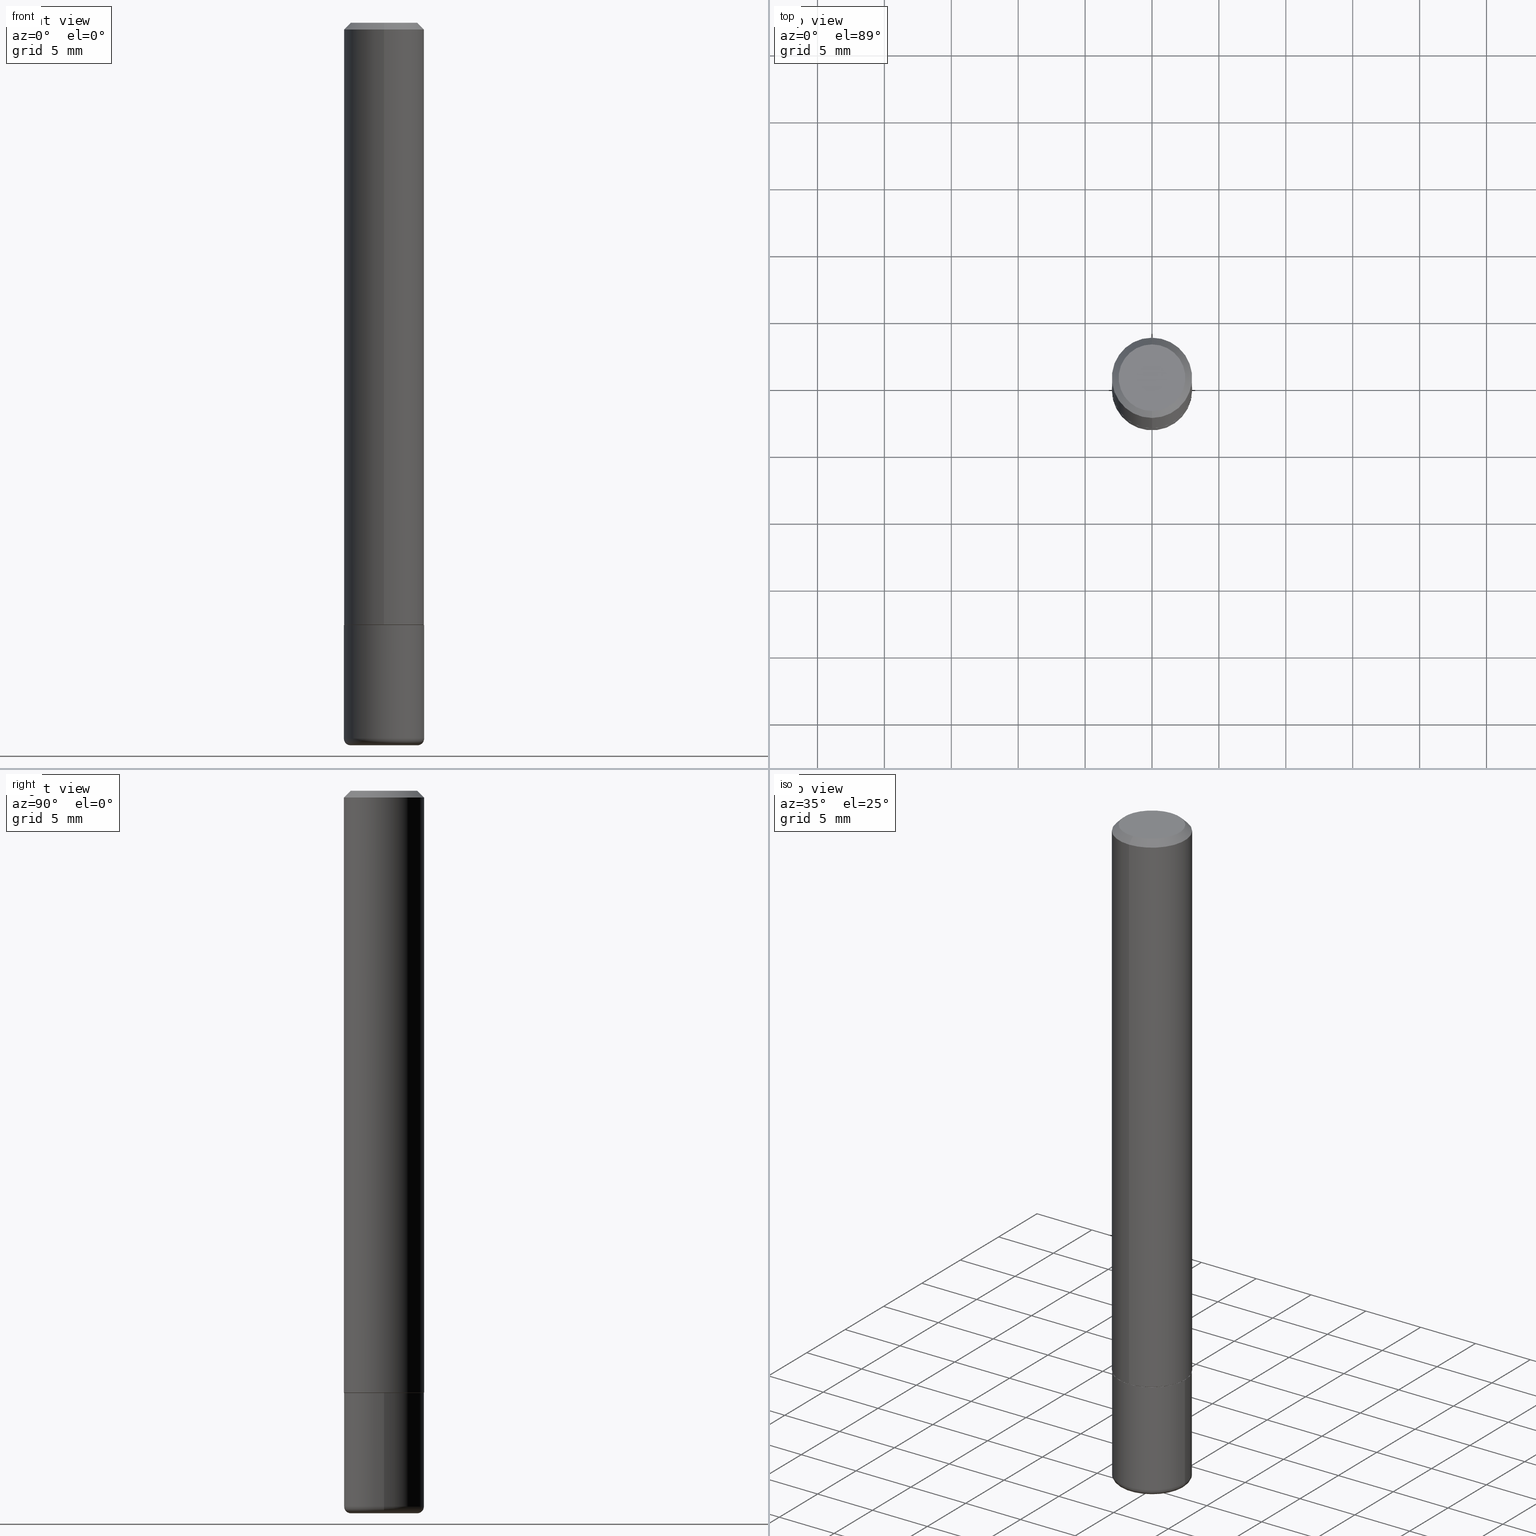
[diagram: canonical four-view strip — front | top / right | iso, engineering-drawing reading convention]
A machine part, canonical four-view strip (front | top / right | iso — engineering-drawing reading convention). The complete STEP part file that produces these views, byte-faithful:
ISO-10303-21;
HEADER;
FILE_DESCRIPTION (( 'STEP AP203' ),
    '1' );
FILE_NAME ('47000.STEP',
    '2024-03-05T09:48:08',
    ( '' ),
    ( '' ),
    'SwSTEP 2.0',
    'SolidWorks 2023',
    '' );
FILE_SCHEMA (( 'CONFIG_CONTROL_DESIGN' ));
ENDSEC;

DATA;
#1 = FACE_OUTER_BOUND ( 'NONE', #224, .T. ) ;
#2 = ADVANCED_FACE ( 'NONE', ( #59 ), #264, .F. ) ;
#3 = ORIENTED_EDGE ( 'NONE', *, *, #137, .T. ) ;
#4 = LINE ( 'NONE', #393, #113 ) ;
#5 = CALENDAR_DATE ( 2024, 5, 3 ) ;
#6 = LINE ( 'NONE', #237, #267 ) ;
#7 = CIRCLE ( 'NONE', #317, 0.01969999999999991203 ) ;
#8 = DIRECTION ( 'NONE',  ( -2.445468806185136877E-29, 3.491481338843145188E-15, 1.000000000000000000 ) ) ;
#9 = DATE_TIME_ROLE ( 'creation_date' ) ;
#10 = FACE_OUTER_BOUND ( 'NONE', #46, .T. ) ;
#11 = APPROVAL_ROLE ( '' ) ;
#12 = CARTESIAN_POINT ( 'NONE',  ( -8.246878922347489529E-16, -0.1181000000000001354, 4.133363577972476627E-16 ) ) ;
#13 = APPROVAL_PERSON_ORGANIZATION ( #40, #260, #11 ) ;
#14 = COORDINATED_UNIVERSAL_TIME_OFFSET ( 5, 0, .BEHIND. ) ;
#15 = ADVANCED_FACE ( 'NONE', ( #1 ), #150, .T. ) ;
#16 = DIRECTION ( 'NONE',  ( -2.439600919884167677E-29, 3.499884486005480105E-15, 1.000000000000000000 ) ) ;
#17 = ORIENTED_EDGE ( 'NONE', *, *, #98, .F. ) ;
#18 = DIRECTION ( 'NONE',  ( -6.982962677686265922E-15, -1.000000000000000000, 3.499884486005480105E-15 ) ) ;
#19 = ADVANCED_FACE ( 'NONE', ( #57 ), #89, .T. ) ;
#20 = EDGE_LOOP ( 'NONE', ( #51, #93, #282, #286 ) ) ;
#21 = CARTESIAN_POINT ( 'NONE',  ( 8.320455435751206749E-16, 0.1170999999999938479, -1.771700000000000497 ) ) ;
#22 = VERTEX_POINT ( 'NONE', #298 ) ;
#23 = AXIS2_PLACEMENT_3D ( 'NONE', #218, #376, #318 ) ;
#24 = DIRECTION ( 'NONE',  ( -6.982962677686265922E-15, -1.000000000000000000, 3.499884486005479316E-15 ) ) ;
#25 = ORIENTED_EDGE ( 'NONE', *, *, #335, .F. ) ;
#26 = AXIS2_PLACEMENT_3D ( 'NONE', #395, #266, #105 ) ;
#27 = ORIENTED_EDGE ( 'NONE', *, *, #197, .T. ) ;
#28 = ORIENTED_EDGE ( 'NONE', *, *, #287, .F. ) ;
#29 = EDGE_CURVE ( 'NONE', #219, #251, #54, .T. ) ;
#30 = ORIENTED_EDGE ( 'NONE', *, *, #162, .T. ) ;
#31 = AXIS2_PLACEMENT_3D ( 'NONE', #301, #389, #359 ) ;
#32 = DIRECTION ( 'NONE',  ( 6.982962677686265922E-15, 1.000000000000000000, -3.505890868245044514E-15 ) ) ;
#33 = DIRECTION ( 'NONE',  ( -2.439600919884167677E-29, 3.499884486005479711E-15, 1.000000000000000000 ) ) ;
#34 = EDGE_CURVE ( 'NONE', #261, #195, #296, .T. ) ;
#35 = COORDINATED_UNIVERSAL_TIME_OFFSET ( 5, 0, .BEHIND. ) ;
#36 = CARTESIAN_POINT ( 'NONE',  ( 4.332637083918205866E-29, -6.185857488028400292E-15, -1.771699999999999831 ) ) ;
#37 =( CONVERSION_BASED_UNIT ( 'INCH', #67 ) LENGTH_UNIT ( ) NAMED_UNIT ( #254 ) );
#38 = CARTESIAN_POINT ( 'NONE',  ( 5.150890946467753013E-29, -7.354107144005317023E-15, -2.106300000000000061 ) ) ;
#39 = AXIS2_PLACEMENT_3D ( 'NONE', #361, #163, #103 ) ;
#40 = PERSON_AND_ORGANIZATION ( #209, #397 ) ;
#41 = CYLINDRICAL_SURFACE ( 'NONE', #133, 0.1181000000000000383 ) ;
#42 = DIRECTION ( 'NONE',  ( 1.000000000000000000, -6.982962677686261977E-15, 0.000000000000000000 ) ) ;
#43 = CARTESIAN_POINT ( 'NONE',  ( 0.000000000000000000, 0.000000000000000000, 0.000000000000000000 ) ) ;
#44 = DIRECTION ( 'NONE',  ( 7.105427357601001859E-15, 1.000000000000000000, -3.491481338843145583E-15 ) ) ;
#45 = AXIS2_PLACEMENT_3D ( 'NONE', #102, #173, #307 ) ;
#46 = EDGE_LOOP ( 'NONE', ( #116, #411, #129, #17 ) ) ;
#47 = AXIS2_PLACEMENT_3D ( 'NONE', #36, #369, #304 ) ;
#48 = CC_DESIGN_PERSON_AND_ORGANIZATION_ASSIGNMENT ( #172, #132, ( #189 ) ) ;
#49 = CARTESIAN_POINT ( 'NONE',  ( 0.09840000000000000135, -8.041230671489646072E-15, -2.106300000000000061 ) ) ;
#50 = CARTESIAN_POINT ( 'NONE',  ( -0.1180999999999999689, -6.514956173072637249E-15, -2.106299999999999617 ) ) ;
#51 = ORIENTED_EDGE ( 'NONE', *, *, #62, .F. ) ;
#52 = CYLINDRICAL_SURFACE ( 'NONE', #374, 0.1181000000000001354 ) ;
#53 = ORIENTED_EDGE ( 'NONE', *, *, #130, .F. ) ;
#54 = CIRCLE ( 'NONE', #373, 0.1181000000000002603 ) ;
#55 = MANIFOLD_SOLID_BREP ( 'Body-Move/Copy2[1]', #308 ) ;
#56 = EDGE_LOOP ( 'NONE', ( #118, #313 ) ) ;
#57 = FACE_OUTER_BOUND ( 'NONE', #95, .T. ) ;
#58 = MANIFOLD_SOLID_BREP ( 'Body-Move/Copy2[2]', #238 ) ;
#59 = FACE_OUTER_BOUND ( 'NONE', #88, .T. ) ;
#60 = AXIS2_PLACEMENT_3D ( 'NONE', #84, #215, #346 ) ;
#61 = CARTESIAN_POINT ( 'NONE',  ( 4.879201839768351154E-31, -6.999768972010982150E-17, -0.02000000000000006287 ) ) ;
#62 = EDGE_CURVE ( 'NONE', #219, #289, #125, .T. ) ;
#63 = ORIENTED_EDGE ( 'NONE', *, *, #124, .T. ) ;
#64 = VERTEX_POINT ( 'NONE', #384 ) ;
#65 = AXIS2_PLACEMENT_3D ( 'NONE', #200, #269, #327 ) ;
#66 = CARTESIAN_POINT ( 'NONE',  ( -7.416198335591013204E-16, -0.09809999999999970133, 6.984495534920956543E-16 ) ) ;
#67 = LENGTH_MEASURE_WITH_UNIT ( LENGTH_MEASURE( 0.02539999999999999897 ), #207 );
#68 = CARTESIAN_POINT ( 'NONE',  ( 8.391509709327015671E-16, 0.1180999999999940708, -1.770700000000000385 ) ) ;
#69 = DATE_AND_TIME ( #234, #250 ) ;
#70 = DIRECTION ( 'NONE',  ( -2.445468806185136597E-29, 3.491481338843145583E-15, 1.000000000000000000 ) ) ;
#71 = APPROVAL_DATE_TIME ( #170, #275 ) ;
#72 = AXIS2_PLACEMENT_3D ( 'NONE', #387, #157, #294 ) ;
#73 = PLANE ( 'NONE',  #31 ) ;
#74 = LOCAL_TIME ( 4, 48, 8.000000000000000000, #35 ) ;
#75 = PRODUCT ( '47000', '47000', '', ( #139 ) ) ;
#76 = PERSON_AND_ORGANIZATION_ROLE ( 'design_supplier' ) ;
#77 = EDGE_CURVE ( 'NONE', #64, #372, #342, .T. ) ;
#78 = LINE ( 'NONE', #134, #127 ) ;
#79 =( NAMED_UNIT ( * ) SI_UNIT ( $, .STERADIAN. ) SOLID_ANGLE_UNIT ( ) );
#80 = CARTESIAN_POINT ( 'NONE',  ( 0.000000000000000000, 0.000000000000000000, 0.000000000000000000 ) ) ;
#81 = CARTESIAN_POINT ( 'NONE',  ( -0.09840000000000000135, -6.619335723732613679E-15, -2.125999999999999890 ) ) ;
#82 = CONICAL_SURFACE ( 'NONE', #96, 0.1171000000000000513, 0.7853981633975165577 ) ;
#83 = ADVANCED_FACE ( 'NONE', ( #229 ), #123, .T. ) ;
#84 = CARTESIAN_POINT ( 'NONE',  ( 4.879201839768351154E-31, -6.999768972010982150E-17, -0.02000000000000006287 ) ) ;
#85 = ORIENTED_EDGE ( 'NONE', *, *, #223, .T. ) ;
#86 = DIRECTION ( 'NONE',  ( -1.000000000000000000, 7.105427357601008170E-15, 0.000000000000000000 ) ) ;
#87 = ORIENTED_EDGE ( 'NONE', *, *, #167, .F. ) ;
#88 = EDGE_LOOP ( 'NONE', ( #216, #91 ) ) ;
#89 = CONICAL_SURFACE ( 'NONE', #413, 0.1181000000000000383, 0.7853981633974461696 ) ;
#90 = CONICAL_SURFACE ( 'NONE', #60, 0.1181000000000000383, 0.7853981633974461696 ) ;
#91 = ORIENTED_EDGE ( 'NONE', *, *, #292, .T. ) ;
#92 = EDGE_CURVE ( 'NONE', #372, #195, #4, .T. ) ;
#93 = ORIENTED_EDGE ( 'NONE', *, *, #29, .T. ) ;
#94 = APPLICATION_CONTEXT ( 'configuration controlled 3d designs of mechanical parts and assemblies' ) ;
#95 = EDGE_LOOP ( 'NONE', ( #228, #146, #326, #403 ) ) ;
#96 = AXIS2_PLACEMENT_3D ( 'NONE', #106, #271, #100 ) ;
#97 = EDGE_LOOP ( 'NONE', ( #382, #63 ) ) ;
#98 = EDGE_CURVE ( 'NONE', #324, #251, #78, .T. ) ;
#99 = CARTESIAN_POINT ( 'NONE',  ( 5.150890946467751892E-29, -7.354107144005315446E-15, -2.106299999999999617 ) ) ;
#100 = DIRECTION ( 'NONE',  ( -6.982962677686266711E-15, -1.000000000000000000, 4.665837734695579875E-15 ) ) ;
#101 = CC_DESIGN_APPROVAL ( #260, ( #331 ) ) ;
#102 = CARTESIAN_POINT ( 'NONE',  ( 4.879201839768351154E-31, -6.999768972010982150E-17, -0.02000000000000006287 ) ) ;
#103 = DIRECTION ( 'NONE',  ( -6.982962677686265922E-15, -1.000000000000000000, 3.505890868245044514E-15 ) ) ;
#104 = PERSON_AND_ORGANIZATION_ROLE ( 'design_owner' ) ;
#105 = DIRECTION ( 'NONE',  ( 1.000000000000000000, -6.982962677686261977E-15, 0.000000000000000000 ) ) ;
#106 = CARTESIAN_POINT ( 'NONE',  ( 4.322240949758779286E-29, -6.200745343855908404E-15, -1.771699999999999831 ) ) ;
#107 = APPROVAL ( #334, 'UNSPECIFIED' ) ;
#108 = DIRECTION ( 'NONE',  ( -2.439600919884167677E-29, 3.499884486005480105E-15, 1.000000000000000000 ) ) ;
#109 = CARTESIAN_POINT ( 'NONE',  ( 4.322240949758779286E-29, -6.200745343855908404E-15, -1.771699999999999831 ) ) ;
#110 = ADVANCED_FACE ( 'NONE', ( #241 ), #366, .T. ) ;
#111 = ORIENTED_EDGE ( 'NONE', *, *, #408, .F. ) ;
#112 = FACE_OUTER_BOUND ( 'NONE', #347, .T. ) ;
#113 = VECTOR ( 'NONE', #8, 39.37007874015748143 ) ;
#114 = AXIS2_PLACEMENT_3D ( 'NONE', #109, #16, #283 ) ;
#115 = DIRECTION ( 'NONE',  ( -2.439600919884167677E-29, 3.499884486005480105E-15, 1.000000000000000000 ) ) ;
#116 = ORIENTED_EDGE ( 'NONE', *, *, #144, .T. ) ;
#117 = EDGE_CURVE ( 'NONE', #251, #180, #332, .T. ) ;
#118 = ORIENTED_EDGE ( 'NONE', *, *, #144, .F. ) ;
#119 = AXIS2_PLACEMENT_3D ( 'NONE', #353, #128, #191 ) ;
#120 = CONICAL_SURFACE ( 'NONE', #114, 0.1171000000000000513, 0.7853981633975165577 ) ;
#121 = LOCAL_TIME ( 4, 48, 8.000000000000000000, #14 ) ;
#122 = CC_DESIGN_PERSON_AND_ORGANIZATION_ASSIGNMENT ( #143, #76, ( #375 ) ) ;
#123 = PLANE ( 'NONE',  #316 ) ;
#124 = EDGE_CURVE ( 'NONE', #195, #261, #213, .T. ) ;
#125 = LINE ( 'NONE', #259, #412 ) ;
#126 = DIRECTION ( 'NONE',  ( -1.000000000000000000, 6.982962677686265922E-15, -4.876176775795935793E-29 ) ) ;
#127 = VECTOR ( 'NONE', #202, 39.37007874015748143 ) ;
#128 = DIRECTION ( 'NONE',  ( -2.445468806185136597E-29, 3.491481338843145583E-15, 1.000000000000000000 ) ) ;
#129 = ORIENTED_EDGE ( 'NONE', *, *, #162, .F. ) ;
#130 = EDGE_CURVE ( 'NONE', #159, #180, #136, .T. ) ;
#131 = DIRECTION ( 'NONE',  ( -6.982962677686265922E-15, -1.000000000000000000, 3.499884486005479316E-15 ) ) ;
#132 = PERSON_AND_ORGANIZATION_ROLE ( 'classification_officer' ) ;
#133 = AXIS2_PLACEMENT_3D ( 'NONE', #80, #211, #249 ) ;
#134 = CARTESIAN_POINT ( 'NONE',  ( -8.177049295570189596E-16, -0.1171000000000062408, -1.771699999999999386 ) ) ;
#135 = DATE_AND_TIME ( #303, #142 ) ;
#136 = LINE ( 'NONE', #396, #205 ) ;
#137 = EDGE_CURVE ( 'NONE', #22, #341, #262, .T. ) ;
#138 = EDGE_CURVE ( 'NONE', #289, #180, #187, .T. ) ;
#139 = MECHANICAL_CONTEXT ( 'NONE', #94, 'mechanical' ) ;
#140 = CARTESIAN_POINT ( 'NONE',  ( 7.548582654578846686E-16, 0.09809999999999970133, 1.177221733782262973E-17 ) ) ;
#141 = CARTESIAN_POINT ( 'NONE',  ( 4.322240949758779286E-29, -6.200745343855908404E-15, -1.771699999999999831 ) ) ;
#142 = LOCAL_TIME ( 4, 48, 8.000000000000000000, #330 ) ;
#143 = PERSON_AND_ORGANIZATION ( #209, #397 ) ;
#144 = EDGE_CURVE ( 'NONE', #324, #212, #192, .T. ) ;
#145 = FACE_OUTER_BOUND ( 'NONE', #20, .T. ) ;
#146 = ORIENTED_EDGE ( 'NONE', *, *, #130, .T. ) ;
#147 = FACE_OUTER_BOUND ( 'NONE', #97, .T. ) ;
#148 = COORDINATED_UNIVERSAL_TIME_OFFSET ( 5, 0, .BEHIND. ) ;
#149 = CARTESIAN_POINT ( 'NONE',  ( 0.1181000000000000383, -7.010545380263147766E-15, -1.771699999999999831 ) ) ;
#150 = TOROIDAL_SURFACE ( 'NONE', #119, 0.09840000000000000135, 0.01969999999999991203 ) ;
#151 = CIRCLE ( 'NONE', #357, 0.09809999999999970133 ) ;
#152 = EDGE_LOOP ( 'NONE', ( #410, #377 ) ) ;
#153 = CARTESIAN_POINT ( 'NONE',  ( -8.246878922347066502E-16, -0.1181000000000064498, -1.770699999999999275 ) ) ;
#154 = EDGE_CURVE ( 'NONE', #178, #159, #166, .T. ) ;
#155 = ORIENTED_EDGE ( 'NONE', *, *, #287, .T. ) ;
#156 = ADVANCED_FACE ( 'NONE', ( #10 ), #82, .T. ) ;
#157 = DIRECTION ( 'NONE',  ( -2.445468806185136597E-29, 3.491481338843145583E-15, 1.000000000000000000 ) ) ;
#158 = DIRECTION ( 'NONE',  ( 2.439600919884167958E-29, -3.499884486005479711E-15, -1.000000000000000000 ) ) ;
#159 = VERTEX_POINT ( 'NONE', #66 ) ;
#160 = AXIS2_PLACEMENT_3D ( 'NONE', #243, #400, #370 ) ;
#161 = DIRECTION ( 'NONE',  ( 2.439600919884167677E-29, -3.499884486005480105E-15, -1.000000000000000000 ) ) ;
#162 = EDGE_CURVE ( 'NONE', #251, #219, #381, .T. ) ;
#163 = DIRECTION ( 'NONE',  ( -2.439600919884167677E-29, 3.499884486005480105E-15, 1.000000000000000000 ) ) ;
#164 = PRODUCT_RELATED_PRODUCT_CATEGORY ( 'detail', '', ( #75 ) ) ;
#165 = CARTESIAN_POINT ( 'NONE',  ( -0.1181000000000000383, -5.930831345084179278E-15, -1.771699999999999831 ) ) ;
#166 = CIRCLE ( 'NONE', #220, 0.09809999999999970133 ) ;
#167 = EDGE_CURVE ( 'NONE', #180, #289, #343, .T. ) ;
#168 = DIRECTION ( 'NONE',  ( 1.000000000000000000, -6.982962677686269866E-15, 4.883557194083114022E-29 ) ) ;
#169 = DESIGN_CONTEXT ( 'detailed design', #181, 'design' ) ;
#170 = DATE_AND_TIME ( #5, #121 ) ;
#171 = DIRECTION ( 'NONE',  ( -4.851104656540953231E-15, -0.7071067811865484609, -0.7071067811865465735 ) ) ;
#172 = PERSON_AND_ORGANIZATION ( #209, #397 ) ;
#173 = DIRECTION ( 'NONE',  ( -2.439600919884167677E-29, 3.499884486005480105E-15, 1.000000000000000000 ) ) ;
#174 = APPROVAL_STATUS ( 'not_yet_approved' ) ;
#175 = CARTESIAN_POINT ( 'NONE',  ( 0.000000000000000000, 0.000000000000000000, 0.000000000000000000 ) ) ;
#176 = AXIS2_PLACEMENT_3D ( 'NONE', #175, #312, #18 ) ;
#177 = LOCAL_TIME ( 4, 48, 8.000000000000000000, #148 ) ;
#178 = VERTEX_POINT ( 'NONE', #140 ) ;
#179 = FACE_OUTER_BOUND ( 'NONE', #354, .T. ) ;
#180 = VERTEX_POINT ( 'NONE', #299 ) ;
#181 = APPLICATION_CONTEXT ( 'configuration controlled 3d designs of mechanical parts and assemblies' ) ;
#182 = LINE ( 'NONE', #21, #240 ) ;
#183 = CC_DESIGN_PERSON_AND_ORGANIZATION_ASSIGNMENT ( #337, #305, ( #331 ) ) ;
#184 = ORIENTED_EDGE ( 'NONE', *, *, #117, .F. ) ;
#185 = DIRECTION ( 'NONE',  ( -6.982962677686265922E-15, -1.000000000000000000, 3.499884486005480105E-15 ) ) ;
#186 = VECTOR ( 'NONE', #33, 39.37007874015748143 ) ;
#187 = CIRCLE ( 'NONE', #45, 0.1181000000000000383 ) ;
#188 = EDGE_LOOP ( 'NONE', ( #111, #417, #386, #379 ) ) ;
#189 = SECURITY_CLASSIFICATION ( '', '', #231 ) ;
#190 = DIRECTION ( 'NONE',  ( -2.439600919884167677E-29, 3.499884486005479711E-15, 1.000000000000000000 ) ) ;
#191 = DIRECTION ( 'NONE',  ( 1.000000000000000000, -6.982962677686269866E-15, 4.883557194083114022E-29 ) ) ;
#192 = CIRCLE ( 'NONE', #288, 0.1171000000000000513 ) ;
#193 = PRODUCT_DEFINITION_SHAPE ( 'NONE', 'NONE',  #331 ) ;
#194 = CC_DESIGN_SECURITY_CLASSIFICATION ( #189, ( #375 ) ) ;
#195 = VERTEX_POINT ( 'NONE', #165 ) ;
#196 = ORIENTED_EDGE ( 'NONE', *, *, #62, .T. ) ;
#197 = EDGE_CURVE ( 'NONE', #341, #22, #390, .T. ) ;
#198 = EDGE_LOOP ( 'NONE', ( #383, #315, #225, #25 ) ) ;
#199 = AXIS2_PLACEMENT_3D ( 'NONE', #38, #230, #168 ) ;
#200 = CARTESIAN_POINT ( 'NONE',  ( 4.319801348838895130E-29, -6.197245459369903172E-15, -1.770699999999999719 ) ) ;
#201 = CC_DESIGN_PERSON_AND_ORGANIZATION_ASSIGNMENT ( #272, #339, ( #375 ) ) ;
#202 = DIRECTION ( 'NONE',  ( -4.937700262164884886E-15, -0.7071067811865933139, 0.7071067811865017205 ) ) ;
#203 = DIRECTION ( 'NONE',  ( -2.439600919884167677E-29, 3.499884486005480105E-15, 1.000000000000000000 ) ) ;
#204 = APPROVAL_ROLE ( '' ) ;
#205 = VECTOR ( 'NONE', #171, 39.37007874015748143 ) ;
#206 = FACE_OUTER_BOUND ( 'NONE', #198, .T. ) ;
#207 =( LENGTH_UNIT ( ) NAMED_UNIT ( * ) SI_UNIT ( $, .METRE. ) );
#208 = CARTESIAN_POINT ( 'NONE',  ( 5.199066681949599750E-29, -7.422889326380526631E-15, -2.125999999999999890 ) ) ;
#209 = PERSON ( 'UNSPECIFIED', 'UNSPECIFIED', 'UNSPECIFIED', ('UNSPECIFIED'), ('UNSPECIFIED'), ('UNSPECIFIED') ) ;
#210 = APPROVAL_DATE_TIME ( #392, #260 ) ;
#211 = DIRECTION ( 'NONE',  ( -2.445468806185136597E-29, 3.491481338843145583E-15, 1.000000000000000000 ) ) ;
#212 = VERTEX_POINT ( 'NONE', #232 ) ;
#213 = CIRCLE ( 'NONE', #47, 0.1181000000000000383 ) ;
#214 = CARTESIAN_POINT ( 'NONE',  ( 4.322240949758779286E-29, -6.200745343855908404E-15, -1.771699999999999831 ) ) ;
#215 = DIRECTION ( 'NONE',  ( 2.439600919884167677E-29, -3.499884486005480105E-15, -1.000000000000000000 ) ) ;
#216 = ORIENTED_EDGE ( 'NONE', *, *, #154, .T. ) ;
#217 = ADVANCED_FACE ( 'NONE', ( #273 ), #73, .F. ) ;
#218 = CARTESIAN_POINT ( 'NONE',  ( 4.332637083918205866E-29, -6.185857488028400292E-15, -1.771699999999999831 ) ) ;
#219 = VERTEX_POINT ( 'NONE', #68 ) ;
#220 = AXIS2_PLACEMENT_3D ( 'NONE', #306, #203, #131 ) ;
#221 = ORIENTED_EDGE ( 'NONE', *, *, #293, .T. ) ;
#222 = APPROVAL_ROLE ( '' ) ;
#223 = EDGE_CURVE ( 'NONE', #178, #289, #6, .T. ) ;
#224 = EDGE_LOOP ( 'NONE', ( #3, #155, #356, #295 ) ) ;
#225 = ORIENTED_EDGE ( 'NONE', *, *, #34, .F. ) ;
#226 = DIRECTION ( 'NONE',  ( -2.445468806185136597E-29, 3.491481338843145583E-15, 1.000000000000000000 ) ) ;
#227 =( GEOMETRIC_REPRESENTATION_CONTEXT ( 3 ) GLOBAL_UNCERTAINTY_ASSIGNED_CONTEXT ( ( #246 ) ) GLOBAL_UNIT_ASSIGNED_CONTEXT ( ( #37, #398, #79 ) ) REPRESENTATION_CONTEXT ( 'NONE', 'WORKASPACE' ) );
#228 = ORIENTED_EDGE ( 'NONE', *, *, #292, .F. ) ;
#229 = FACE_OUTER_BOUND ( 'NONE', #152, .T. ) ;
#230 = DIRECTION ( 'NONE',  ( -2.445468806185136597E-29, 3.491481338843145583E-15, 1.000000000000000000 ) ) ;
#231 = SECURITY_CLASSIFICATION_LEVEL ( 'unclassified' ) ;
#232 = CARTESIAN_POINT ( 'NONE',  ( 8.355982572539219678E-16, 0.1170999999999938479, -1.771700000000000497 ) ) ;
#233 = EDGE_CURVE ( 'NONE', #372, #64, #321, .T. ) ;
#234 = CALENDAR_DATE ( 2024, 5, 3 ) ;
#235 = DIRECTION ( 'NONE',  ( 4.937700262164536998E-15, 0.7071067811865435759, -0.7071067811865514585 ) ) ;
#236 = DIRECTION ( 'NONE',  ( 1.000000000000000000, 0.000000000000000000, 0.000000000000000000 ) ) ;
#237 = CARTESIAN_POINT ( 'NONE',  ( 8.246878922347486570E-16, 0.1180999999999999689, -0.02000000000000047920 ) ) ;
#238 = CLOSED_SHELL ( 'NONE', ( #156, #362, #19, #364, #281, #252, #217, #2 ) ) ;
#239 = COORDINATED_UNIVERSAL_TIME_OFFSET ( 5, 0, .BEHIND. ) ;
#240 = VECTOR ( 'NONE', #278, 39.37007874015748143 ) ;
#241 = FACE_OUTER_BOUND ( 'NONE', #291, .T. ) ;
#242 = CALENDAR_DATE ( 2024, 5, 3 ) ;
#243 = CARTESIAN_POINT ( 'NONE',  ( 0.000000000000000000, 0.000000000000000000, 0.000000000000000000 ) ) ;
#244 = ADVANCED_FACE ( 'NONE', ( #206 ), #41, .T. ) ;
#245 = CARTESIAN_POINT ( 'NONE',  ( -8.663288427192156603E-45, 1.242847078675485484E-30, 3.551108854149591813E-16 ) ) ;
#246 = UNCERTAINTY_MEASURE_WITH_UNIT (LENGTH_MEASURE( 1.000000000000000082E-05 ), #37, 'distance_accuracy_value', 'NONE');
#247 = ORIENTED_EDGE ( 'NONE', *, *, #233, .T. ) ;
#248 = VECTOR ( 'NONE', #344, 39.37007874015748143 ) ;
#249 = DIRECTION ( 'NONE',  ( 1.000000000000000000, -6.982962677686266711E-15, 4.876176775795935793E-29 ) ) ;
#250 = LOCAL_TIME ( 4, 48, 8.000000000000000000, #239 ) ;
#251 = VERTEX_POINT ( 'NONE', #153 ) ;
#252 = ADVANCED_FACE ( 'NONE', ( #311 ), #120, .T. ) ;
#253 = CALENDAR_DATE ( 2024, 5, 3 ) ;
#254 = DIMENSIONAL_EXPONENTS ( 1.000000000000000000, 0.000000000000000000, 0.000000000000000000, 0.000000000000000000, 0.000000000000000000, 0.000000000000000000, 0.000000000000000000 ) ;
#255 = DIRECTION ( 'NONE',  ( -6.982962677686266711E-15, -1.000000000000000000, 3.491481338843145583E-15 ) ) ;
#256 = ORIENTED_EDGE ( 'NONE', *, *, #138, .T. ) ;
#257 = AXIS2_PLACEMENT_3D ( 'NONE', #208, #338, #42 ) ;
#258 = CARTESIAN_POINT ( 'NONE',  ( 9.320653127775695451E-29, -1.520542949825435449E-15, -2.125999999999999890 ) ) ;
#259 = CARTESIAN_POINT ( 'NONE',  ( 8.391509709326791832E-16, 0.1181000000000001354, -4.133363577972476627E-16 ) ) ;
#260 = APPROVAL ( #309, 'UNSPECIFIED' ) ;
#261 = VERTEX_POINT ( 'NONE', #149 ) ;
#262 = CIRCLE ( 'NONE', #257, 0.09840000000000000135 ) ;
#263 = CARTESIAN_POINT ( 'NONE',  ( 4.319801348838895130E-29, -6.197245459369903172E-15, -1.770699999999999719 ) ) ;
#264 = PLANE ( 'NONE',  #385 ) ;
#265 = EDGE_CURVE ( 'NONE', #212, #324, #367, .T. ) ;
#266 = DIRECTION ( 'NONE',  ( -2.445468806185136597E-29, 3.491481338843145583E-15, 1.000000000000000000 ) ) ;
#267 = VECTOR ( 'NONE', #235, 39.37007874015748143 ) ;
#268 = PERSON_AND_ORGANIZATION ( #209, #397 ) ;
#269 = DIRECTION ( 'NONE',  ( -2.439600919884167677E-29, 3.499884486005480105E-15, 1.000000000000000000 ) ) ;
#270 = DATE_TIME_ROLE ( 'classification_date' ) ;
#271 = DIRECTION ( 'NONE',  ( -2.439600919884167677E-29, 3.499884486005480105E-15, 1.000000000000000000 ) ) ;
#272 = PERSON_AND_ORGANIZATION ( #209, #397 ) ;
#273 = FACE_OUTER_BOUND ( 'NONE', #56, .T. ) ;
#274 = ADVANCED_FACE ( 'NONE', ( #147 ), #371, .F. ) ;
#275 = APPROVAL ( #174, 'UNSPECIFIED' ) ;
#276 = AXIS2_PLACEMENT_3D ( 'NONE', #336, #70, #365 ) ;
#277 = LINE ( 'NONE', #279, #248 ) ;
#278 = DIRECTION ( 'NONE',  ( 5.024295867788404755E-15, 0.7071067811865981989, 0.7071067811864968355 ) ) ;
#279 = CARTESIAN_POINT ( 'NONE',  ( 0.1181000000000000383, -8.246878922347483612E-16, 5.758764772215001842E-30 ) ) ;
#280 = CARTESIAN_POINT ( 'NONE',  ( 8.246878922347486570E-16, 0.1180999999999999689, -0.02000000000000047920 ) ) ;
#281 = ADVANCED_FACE ( 'NONE', ( #145 ), #52, .T. ) ;
#282 = ORIENTED_EDGE ( 'NONE', *, *, #117, .T. ) ;
#283 = DIRECTION ( 'NONE',  ( -6.982962677686266711E-15, -1.000000000000000000, 4.665837734695579875E-15 ) ) ;
#284 = DIRECTION ( 'NONE',  ( -2.439600919884167677E-29, 3.499884486005480105E-15, 1.000000000000000000 ) ) ;
#285 = SHAPE_DEFINITION_REPRESENTATION ( #193, #418 ) ;
#286 = ORIENTED_EDGE ( 'NONE', *, *, #138, .F. ) ;
#287 = EDGE_CURVE ( 'NONE', #341, #372, #333, .T. ) ;
#288 = AXIS2_PLACEMENT_3D ( 'NONE', #141, #388, #329 ) ;
#289 = VERTEX_POINT ( 'NONE', #280 ) ;
#290 = CC_DESIGN_APPROVAL ( #275, ( #375 ) ) ;
#291 = EDGE_LOOP ( 'NONE', ( #28, #27, #221, #350 ) ) ;
#292 = EDGE_CURVE ( 'NONE', #159, #178, #151, .T. ) ;
#293 = EDGE_CURVE ( 'NONE', #22, #64, #7, .T. ) ;
#294 = DIRECTION ( 'NONE',  ( 1.000000000000000000, -6.982962677686262766E-15, 0.000000000000000000 ) ) ;
#295 = ORIENTED_EDGE ( 'NONE', *, *, #293, .F. ) ;
#296 = CIRCLE ( 'NONE', #72, 0.1181000000000000383 ) ;
#297 = AXIS2_PLACEMENT_3D ( 'NONE', #406, #44, #86 ) ;
#298 = CARTESIAN_POINT ( 'NONE',  ( 0.09840000000000000135, -8.110012853864854101E-15, -2.125999999999999890 ) ) ;
#299 = CARTESIAN_POINT ( 'NONE',  ( -8.102248135368175393E-16, -0.1181000000000001077, -0.01999999999999965000 ) ) ;
#300 = APPLICATION_PROTOCOL_DEFINITION ( 'international standard', 'config_control_design', 1994, #181 ) ;
#301 = CARTESIAN_POINT ( 'NONE',  ( 4.322240949758779286E-29, -6.200745343855908404E-15, -1.771699999999999831 ) ) ;
#302 = AXIS2_PLACEMENT_3D ( 'NONE', #43, #328, #236 ) ;
#303 = CALENDAR_DATE ( 2024, 5, 3 ) ;
#304 = DIRECTION ( 'NONE',  ( 1.000000000000000000, -6.982962677686262766E-15, 0.000000000000000000 ) ) ;
#305 = PERSON_AND_ORGANIZATION_ROLE ( 'creator' ) ;
#306 = CARTESIAN_POINT ( 'NONE',  ( -8.663288427192156603E-45, 1.242847078675485484E-30, 3.551108854149591813E-16 ) ) ;
#307 = DIRECTION ( 'NONE',  ( -6.982962677686265922E-15, -1.000000000000000000, 3.505890868245044514E-15 ) ) ;
#308 = CLOSED_SHELL ( 'NONE', ( #244, #15, #274, #360, #110, #83 ) ) ;
#309 = APPROVAL_STATUS ( 'not_yet_approved' ) ;
#310 = APPROVAL_PERSON_ORGANIZATION ( #368, #275, #204 ) ;
#311 = FACE_OUTER_BOUND ( 'NONE', #188, .T. ) ;
#312 = DIRECTION ( 'NONE',  ( -2.439600919884167677E-29, 3.499884486005480105E-15, 1.000000000000000000 ) ) ;
#313 = ORIENTED_EDGE ( 'NONE', *, *, #265, .F. ) ;
#314 = FACE_OUTER_BOUND ( 'NONE', #319, .T. ) ;
#315 = ORIENTED_EDGE ( 'NONE', *, *, #92, .T. ) ;
#316 = AXIS2_PLACEMENT_3D ( 'NONE', #258, #323, #126 ) ;
#317 = AXIS2_PLACEMENT_3D ( 'NONE', #49, #255, #409 ) ;
#318 = DIRECTION ( 'NONE',  ( -1.000000000000000000, 6.982962677686265922E-15, -4.876176775795935793E-29 ) ) ;
#319 = EDGE_LOOP ( 'NONE', ( #345, #247, #351, #401 ) ) ;
#320 = DIRECTION ( 'NONE',  ( 1.000000000000000000, -6.982962677686270655E-15, 0.000000000000000000 ) ) ;
#321 = CIRCLE ( 'NONE', #276, 0.1181000000000000383 ) ;
#322 = DIRECTION ( 'NONE',  ( 6.982962677686265922E-15, 1.000000000000000000, -3.499884486005479711E-15 ) ) ;
#323 = DIRECTION ( 'NONE',  ( 2.438088387897960049E-29, -3.491481338843145188E-15, -1.000000000000000000 ) ) ;
#324 = VERTEX_POINT ( 'NONE', #349 ) ;
#325 = CC_DESIGN_DATE_AND_TIME_ASSIGNMENT ( #69, #9, ( #331 ) ) ;
#326 = ORIENTED_EDGE ( 'NONE', *, *, #167, .T. ) ;
#327 = DIRECTION ( 'NONE',  ( -6.982962677686265133E-15, -1.000000000000000000, 4.626330217890359081E-15 ) ) ;
#328 = DIRECTION ( 'NONE',  ( 0.000000000000000000, 0.000000000000000000, 1.000000000000000000 ) ) ;
#329 = DIRECTION ( 'NONE',  ( -6.982962677686266711E-15, -1.000000000000000000, 4.665837734695579875E-15 ) ) ;
#330 = COORDINATED_UNIVERSAL_TIME_OFFSET ( 5, 0, .BEHIND. ) ;
#331 = PRODUCT_DEFINITION ( 'UNKNOWN', '', #375, #169 ) ;
#332 = LINE ( 'NONE', #12, #186 ) ;
#333 = CIRCLE ( 'NONE', #297, 0.01969999999999991203 ) ;
#334 = APPROVAL_STATUS ( 'not_yet_approved' ) ;
#335 = EDGE_CURVE ( 'NONE', #64, #261, #277, .T. ) ;
#336 = CARTESIAN_POINT ( 'NONE',  ( 5.150890946467751892E-29, -7.354107144005315446E-15, -2.106299999999999617 ) ) ;
#337 = PERSON_AND_ORGANIZATION ( #209, #397 ) ;
#338 = DIRECTION ( 'NONE',  ( -2.445468806185136597E-29, 3.491481338843145583E-15, 1.000000000000000000 ) ) ;
#339 = PERSON_AND_ORGANIZATION_ROLE ( 'creator' ) ;
#340 = CYLINDRICAL_SURFACE ( 'NONE', #176, 0.1181000000000001354 ) ;
#341 = VERTEX_POINT ( 'NONE', #81 ) ;
#342 = CIRCLE ( 'NONE', #380, 0.1181000000000000383 ) ;
#343 = CIRCLE ( 'NONE', #39, 0.1181000000000000383 ) ;
#344 = DIRECTION ( 'NONE',  ( -2.445468806185136877E-29, 3.491481338843145188E-15, 1.000000000000000000 ) ) ;
#345 = ORIENTED_EDGE ( 'NONE', *, *, #92, .F. ) ;
#346 = DIRECTION ( 'NONE',  ( 6.982962677686265922E-15, 1.000000000000000000, -3.505890868245044514E-15 ) ) ;
#347 = EDGE_LOOP ( 'NONE', ( #53, #407, #85, #256 ) ) ;
#348 = APPROVAL_DATE_TIME ( #352, #107 ) ;
#349 = CARTESIAN_POINT ( 'NONE',  ( -8.177049295570189596E-16, -0.1171000000000062408, -1.771699999999999386 ) ) ;
#350 = ORIENTED_EDGE ( 'NONE', *, *, #233, .F. ) ;
#351 = ORIENTED_EDGE ( 'NONE', *, *, #335, .T. ) ;
#352 = DATE_AND_TIME ( #253, #177 ) ;
#353 = CARTESIAN_POINT ( 'NONE',  ( 5.150890946467753013E-29, -7.354107144005317023E-15, -2.106300000000000061 ) ) ;
#354 = EDGE_LOOP ( 'NONE', ( #30, #196, #87, #184 ) ) ;
#355 = CARTESIAN_POINT ( 'NONE',  ( 6.850286386810205815E-16, 0.09809999999999970133, -1.657832253696569563E-16 ) ) ;
#356 = ORIENTED_EDGE ( 'NONE', *, *, #77, .F. ) ;
#357 = AXIS2_PLACEMENT_3D ( 'NONE', #245, #115, #24 ) ;
#358 = APPROVAL_PERSON_ORGANIZATION ( #394, #107, #222 ) ;
#359 = DIRECTION ( 'NONE',  ( -6.982962677686265922E-15, -1.000000000000000000, 3.499884486005479711E-15 ) ) ;
#360 = ADVANCED_FACE ( 'NONE', ( #314 ), #399, .T. ) ;
#361 = CARTESIAN_POINT ( 'NONE',  ( 4.879201839768351154E-31, -6.999768972010982150E-17, -0.02000000000000006287 ) ) ;
#362 = ADVANCED_FACE ( 'NONE', ( #179 ), #340, .T. ) ;
#363 = APPLICATION_PROTOCOL_DEFINITION ( 'international standard', 'config_control_design', 1994, #94 ) ;
#364 = ADVANCED_FACE ( 'NONE', ( #112 ), #90, .T. ) ;
#365 = DIRECTION ( 'NONE',  ( 1.000000000000000000, -6.982962677686270655E-15, 0.000000000000000000 ) ) ;
#366 = TOROIDAL_SURFACE ( 'NONE', #199, 0.09840000000000000135, 0.01969999999999991203 ) ;
#367 = CIRCLE ( 'NONE', #405, 0.1171000000000000513 ) ;
#368 = PERSON_AND_ORGANIZATION ( #209, #397 ) ;
#369 = DIRECTION ( 'NONE',  ( -2.445468806185136597E-29, 3.491481338843145583E-15, 1.000000000000000000 ) ) ;
#370 = DIRECTION ( 'NONE',  ( 1.000000000000000000, -6.982962677686266711E-15, 4.876176775795935793E-29 ) ) ;
#371 = PLANE ( 'NONE',  #23 ) ;
#372 = VERTEX_POINT ( 'NONE', #50 ) ;
#373 = AXIS2_PLACEMENT_3D ( 'NONE', #263, #415, #416 ) ;
#374 = AXIS2_PLACEMENT_3D ( 'NONE', #402, #284, #185 ) ;
#375 = PRODUCT_DEFINITION_FORMATION_WITH_SPECIFIED_SOURCE ( 'ANY', '', #75, .NOT_KNOWN. ) ;
#376 = DIRECTION ( 'NONE',  ( 2.438088387897960049E-29, -3.491481338843145188E-15, -1.000000000000000000 ) ) ;
#377 = ORIENTED_EDGE ( 'NONE', *, *, #197, .F. ) ;
#378 = DIRECTION ( 'NONE',  ( -6.982962677686266711E-15, -1.000000000000000000, 4.665837734695579875E-15 ) ) ;
#379 = ORIENTED_EDGE ( 'NONE', *, *, #29, .F. ) ;
#380 = AXIS2_PLACEMENT_3D ( 'NONE', #99, #226, #320 ) ;
#381 = CIRCLE ( 'NONE', #65, 0.1181000000000002603 ) ;
#382 = ORIENTED_EDGE ( 'NONE', *, *, #34, .T. ) ;
#383 = ORIENTED_EDGE ( 'NONE', *, *, #77, .T. ) ;
#384 = CARTESIAN_POINT ( 'NONE',  ( 0.1180999999999999689, -8.178795036240065286E-15, -2.106299999999999617 ) ) ;
#385 = AXIS2_PLACEMENT_3D ( 'NONE', #355, #158, #322 ) ;
#386 = ORIENTED_EDGE ( 'NONE', *, *, #98, .T. ) ;
#387 = CARTESIAN_POINT ( 'NONE',  ( 4.332637083918205866E-29, -6.185857488028400292E-15, -1.771699999999999831 ) ) ;
#388 = DIRECTION ( 'NONE',  ( -2.439600919884167677E-29, 3.499884486005480105E-15, 1.000000000000000000 ) ) ;
#389 = DIRECTION ( 'NONE',  ( -2.439600919884167958E-29, 3.499884486005479711E-15, 1.000000000000000000 ) ) ;
#390 = CIRCLE ( 'NONE', #26, 0.09840000000000000135 ) ;
#391 = CC_DESIGN_DATE_AND_TIME_ASSIGNMENT ( #135, #270, ( #189 ) ) ;
#392 = DATE_AND_TIME ( #242, #74 ) ;
#393 = CARTESIAN_POINT ( 'NONE',  ( -0.1181000000000000383, 8.391509709326785915E-16, -5.809262341591045886E-30 ) ) ;
#394 = PERSON_AND_ORGANIZATION ( #209, #397 ) ;
#395 = CARTESIAN_POINT ( 'NONE',  ( 5.199066681949599750E-29, -7.422889326380526631E-15, -2.125999999999999890 ) ) ;
#396 = CARTESIAN_POINT ( 'NONE',  ( -8.102248135368175393E-16, -0.1181000000000001077, -0.01999999999999965000 ) ) ;
#397 = ORGANIZATION ( 'UNSPECIFIED', 'UNSPECIFIED', '' ) ;
#398 =( NAMED_UNIT ( * ) PLANE_ANGLE_UNIT ( ) SI_UNIT ( $, .RADIAN. ) );
#399 = CYLINDRICAL_SURFACE ( 'NONE', #160, 0.1181000000000000383 ) ;
#400 = DIRECTION ( 'NONE',  ( -2.445468806185136597E-29, 3.491481338843145583E-15, 1.000000000000000000 ) ) ;
#401 = ORIENTED_EDGE ( 'NONE', *, *, #124, .F. ) ;
#402 = CARTESIAN_POINT ( 'NONE',  ( 0.000000000000000000, 0.000000000000000000, 0.000000000000000000 ) ) ;
#403 = ORIENTED_EDGE ( 'NONE', *, *, #223, .F. ) ;
#404 = CC_DESIGN_PERSON_AND_ORGANIZATION_ASSIGNMENT ( #268, #104, ( #75 ) ) ;
#405 = AXIS2_PLACEMENT_3D ( 'NONE', #214, #108, #378 ) ;
#406 = CARTESIAN_POINT ( 'NONE',  ( -0.09840000000000000135, -6.654933092017378135E-15, -2.106300000000000061 ) ) ;
#407 = ORIENTED_EDGE ( 'NONE', *, *, #154, .F. ) ;
#408 = EDGE_CURVE ( 'NONE', #212, #219, #182, .T. ) ;
#409 = DIRECTION ( 'NONE',  ( 1.000000000000000000, -6.982962677686260400E-15, 0.000000000000000000 ) ) ;
#410 = ORIENTED_EDGE ( 'NONE', *, *, #137, .F. ) ;
#411 = ORIENTED_EDGE ( 'NONE', *, *, #408, .T. ) ;
#412 = VECTOR ( 'NONE', #190, 39.37007874015748143 ) ;
#413 = AXIS2_PLACEMENT_3D ( 'NONE', #61, #161, #32 ) ;
#414 = CC_DESIGN_APPROVAL ( #107, ( #189 ) ) ;
#415 = DIRECTION ( 'NONE',  ( -2.439600919884167677E-29, 3.499884486005480105E-15, 1.000000000000000000 ) ) ;
#416 = DIRECTION ( 'NONE',  ( -6.982962677686265133E-15, -1.000000000000000000, 4.626330217890359081E-15 ) ) ;
#417 = ORIENTED_EDGE ( 'NONE', *, *, #265, .T. ) ;
#418 = ADVANCED_BREP_SHAPE_REPRESENTATION ( '47000', ( #55, #58, #302 ), #227 ) ;
ENDSEC;
END-ISO-10303-21;
